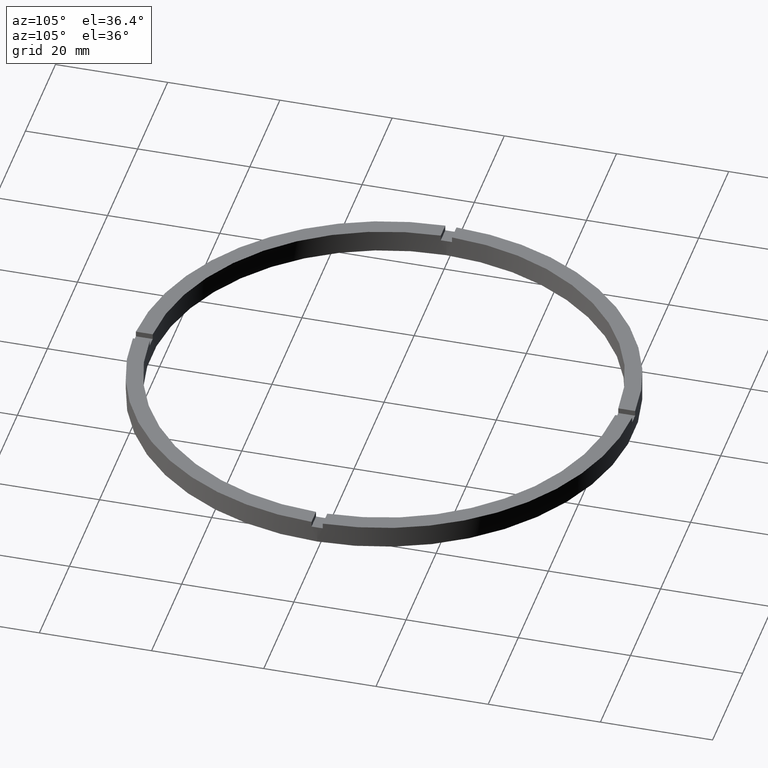
[diagram: clean part render]
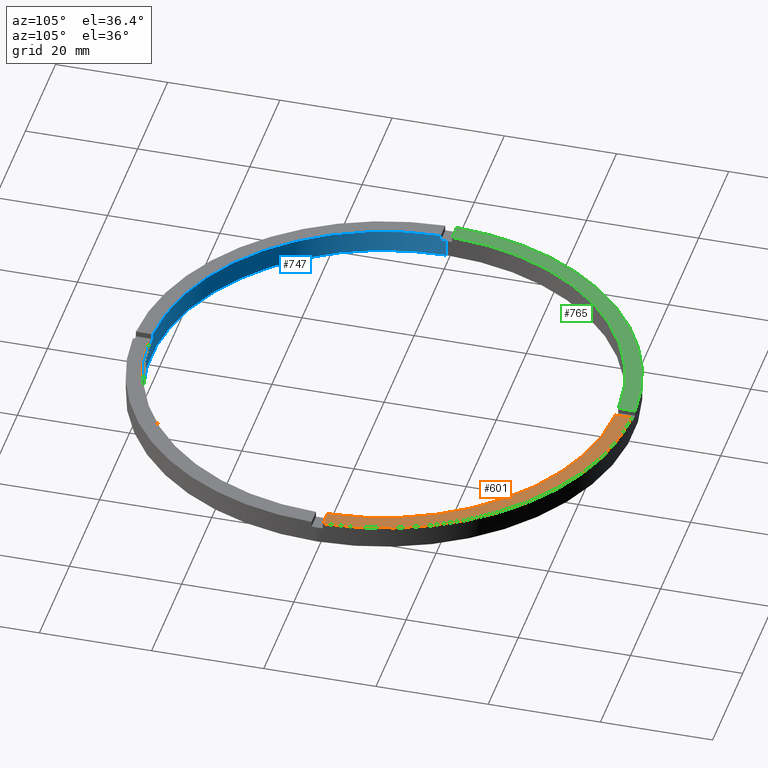
[diagram: same view with three faces highlighted in distinct colors, each labeled with its STEP entity id]
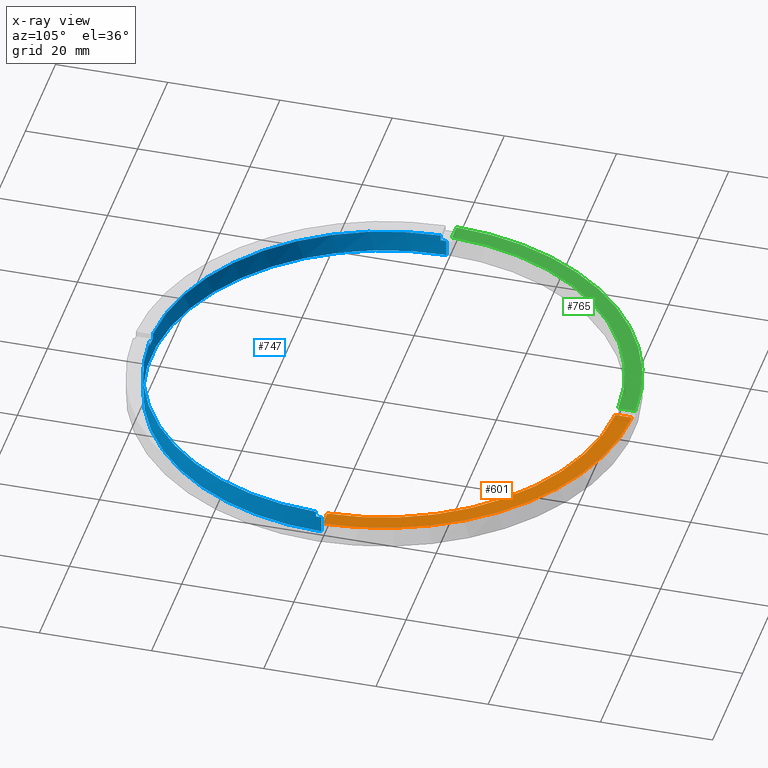
[diagram: x-ray of the same camera — body ghosted, the three highlighted faces saturated]
A machine part, auxiliary view with three faces highlighted in distinct colors.
The next image is the same camera in x-ray (body ghosted, the three faces saturated) — at least one of them is partly hidden behind the body in this view.
Their STEP definitions:

[orange] entity #601 — the highlighted planar face has unit normal (0, 0, 1).
#28 = DIRECTION ( 'NONE',  ( 0.000000000000000000, 0.000000000000000000, 1.000000000000000000 ) ) ;
#64 = CARTESIAN_POINT ( 'NONE',  ( 0.9999999999999740208, 44.48876262608345655, 4.000000000000000000 ) ) ;
#70 = AXIS2_PLACEMENT_3D ( 'NONE', #95, #28, #229 ) ;
#71 = EDGE_CURVE ( 'NONE', #94, #215, #136, .T. ) ;
#76 = CARTESIAN_POINT ( 'NONE',  ( 0.9999999999999740208, 34.50000000000000000, 4.000000000000000000 ) ) ;
#94 = VERTEX_POINT ( 'NONE', #430 ) ;
#95 = CARTESIAN_POINT ( 'NONE',  ( 0.000000000000000000, 0.000000000000000000, 4.000000000000000000 ) ) ;
#96 = AXIS2_PLACEMENT_3D ( 'NONE', #603, #305, #345 ) ;
#112 = ORIENTED_EDGE ( 'NONE', *, *, #332, .F. ) ;
#130 = ORIENTED_EDGE ( 'NONE', *, *, #182, .F. ) ;
#136 = CIRCLE ( 'NONE', #96, 41.50000000000000000 ) ;
#164 = FACE_OUTER_BOUND ( 'NONE', #343, .T. ) ;
#165 = AXIS2_PLACEMENT_3D ( 'NONE', #475, #741, #402 ) ;
#182 = EDGE_CURVE ( 'NONE', #215, #418, #377, .T. ) ;
#215 = VERTEX_POINT ( 'NONE', #392 ) ;
#223 = CARTESIAN_POINT ( 'NONE',  ( 44.48876262608346366, 0.9999999999998439026, 4.000000000000000000 ) ) ;
#229 = DIRECTION ( 'NONE',  ( 1.000000000000000000, 0.000000000000000000, 0.000000000000000000 ) ) ;
#254 = ORIENTED_EDGE ( 'NONE', *, *, #71, .F. ) ;
#295 = DIRECTION ( 'NONE',  ( -1.000000000000000000, -6.505213034913025371E-17, -0.000000000000000000 ) ) ;
#305 = DIRECTION ( 'NONE',  ( 0.000000000000000000, 0.000000000000000000, 1.000000000000000000 ) ) ;
#332 = EDGE_CURVE ( 'NONE', #465, #94, #681, .T. ) ;
#343 = EDGE_LOOP ( 'NONE', ( #130, #254, #112, #523 ) ) ;
#345 = DIRECTION ( 'NONE',  ( 1.000000000000000000, 0.000000000000000000, 0.000000000000000000 ) ) ;
#366 = VECTOR ( 'NONE', #295, 1000.000000000000000 ) ;
#377 = LINE ( 'NONE', #76, #684 ) ;
#389 = PLANE ( 'NONE',  #165 ) ;
#392 = CARTESIAN_POINT ( 'NONE',  ( 0.9999999999999740208, 41.48795005781799716, 4.000000000000000000 ) ) ;
#402 = DIRECTION ( 'NONE',  ( 1.000000000000000000, 0.000000000000000000, -0.000000000000000000 ) ) ;
#418 = VERTEX_POINT ( 'NONE', #64 ) ;
#430 = CARTESIAN_POINT ( 'NONE',  ( 41.48795005781800427, 0.9999999999998436806, 4.000000000000000000 ) ) ;
#447 = DIRECTION ( 'NONE',  ( 0.000000000000000000, 1.000000000000000000, 0.000000000000000000 ) ) ;
#465 = VERTEX_POINT ( 'NONE', #223 ) ;
#475 = CARTESIAN_POINT ( 'NONE',  ( 0.000000000000000000, 0.000000000000000000, 4.000000000000000000 ) ) ;
#523 = ORIENTED_EDGE ( 'NONE', *, *, #549, .T. ) ;
#548 = CARTESIAN_POINT ( 'NONE',  ( 34.49999999999999289, 0.9999999999998432365, 4.000000000000000000 ) ) ;
#549 = EDGE_CURVE ( 'NONE', #465, #418, #713, .T. ) ;
#601 = ADVANCED_FACE ( 'NONE', ( #164 ), #389, .T. ) ;
#603 = CARTESIAN_POINT ( 'NONE',  ( 0.000000000000000000, 0.000000000000000000, 4.000000000000000000 ) ) ;
#681 = LINE ( 'NONE', #548, #366 ) ;
#684 = VECTOR ( 'NONE', #447, 1000.000000000000000 ) ;
#713 = CIRCLE ( 'NONE', #70, 44.50000000000000711 ) ;
#741 = DIRECTION ( 'NONE',  ( 0.000000000000000000, 0.000000000000000000, 1.000000000000000000 ) ) ;

[blue] entity #747 — the highlighted cylindrical surface (partial cylindrical patch) has radius 41.5 mm, axis along (-0, -0, -1).
#6 = VERTEX_POINT ( 'NONE', #35 ) ;
#24 = ORIENTED_EDGE ( 'NONE', *, *, #649, .T. ) ;
#27 = EDGE_CURVE ( 'NONE', #663, #259, #484, .T. ) ;
#35 = CARTESIAN_POINT ( 'NONE',  ( -41.48795005781799716, -1.000000000000029088, 3.000000000000000000 ) ) ;
#46 = VERTEX_POINT ( 'NONE', #365 ) ;
#48 = CARTESIAN_POINT ( 'NONE',  ( -41.48795005781799716, -1.000000000000029088, 4.000000000000000000 ) ) ;
#50 = VERTEX_POINT ( 'NONE', #276 ) ;
#51 = CARTESIAN_POINT ( 'NONE',  ( -41.50000000000000000, 0.000000000000000000, 4.000000000000000000 ) ) ;
#55 = VERTEX_POINT ( 'NONE', #48 ) ;
#63 = CARTESIAN_POINT ( 'NONE',  ( 0.9999999999998414602, -41.48795005781800427, 4.000000000000000000 ) ) ;
#69 = CARTESIAN_POINT ( 'NONE',  ( 0.000000000000000000, 0.000000000000000000, 0.000000000000000000 ) ) ;
#73 = CARTESIAN_POINT ( 'NONE',  ( -41.48795005781799716, -1.000000000000029088, 4.000000000000000000 ) ) ;
#82 = CARTESIAN_POINT ( 'NONE',  ( 0.000000000000000000, 0.000000000000000000, 4.000000000000000000 ) ) ;
#83 = DIRECTION ( 'NONE',  ( 1.000000000000000000, 0.000000000000000000, 0.000000000000000000 ) ) ;
#84 = DIRECTION ( 'NONE',  ( -0.000000000000000000, -0.000000000000000000, -1.000000000000000000 ) ) ;
#90 = EDGE_CURVE ( 'NONE', #521, #562, #110, .T. ) ;
#91 = EDGE_CURVE ( 'NONE', #55, #6, #395, .T. ) ;
#104 = DIRECTION ( 'NONE',  ( 0.000000000000000000, 0.000000000000000000, 1.000000000000000000 ) ) ;
#109 = AXIS2_PLACEMENT_3D ( 'NONE', #69, #104, #598 ) ;
#110 = LINE ( 'NONE', #553, #138 ) ;
#116 = CIRCLE ( 'NONE', #291, 41.50000000000000000 ) ;
#118 = LINE ( 'NONE', #51, #666 ) ;
#122 = DIRECTION ( 'NONE',  ( 0.000000000000000000, 0.000000000000000000, 1.000000000000000000 ) ) ;
#132 = DIRECTION ( 'NONE',  ( -0.000000000000000000, 0.000000000000000000, 1.000000000000000000 ) ) ;
#138 = VECTOR ( 'NONE', #489, 1000.000000000000000 ) ;
#145 = CIRCLE ( 'NONE', #685, 41.50000000000000000 ) ;
#162 = DIRECTION ( 'NONE',  ( 0.000000000000000000, 0.000000000000000000, 1.000000000000000000 ) ) ;
#176 = DIRECTION ( 'NONE',  ( 1.000000000000000000, 0.000000000000000000, 0.000000000000000000 ) ) ;
#179 = AXIS2_PLACEMENT_3D ( 'NONE', #311, #755, #373 ) ;
#185 = VECTOR ( 'NONE', #162, 1000.000000000000000 ) ;
#187 = EDGE_CURVE ( 'NONE', #695, #50, #400, .T. ) ;
#203 = CARTESIAN_POINT ( 'NONE',  ( 41.48795005781799006, -1.000000000000156319, 4.000000000000000000 ) ) ;
#222 = EDGE_LOOP ( 'NONE', ( #705, #426, #524, #513, #650, #657, #363, #257, #24, #390, #255, #260 ) ) ;
#231 = CARTESIAN_POINT ( 'NONE',  ( 0.9999999999998414602, -41.48795005781800427, 4.000000000000000000 ) ) ;
#233 = AXIS2_PLACEMENT_3D ( 'NONE', #780, #132, #83 ) ;
#255 = ORIENTED_EDGE ( 'NONE', *, *, #321, .T. ) ;
#257 = ORIENTED_EDGE ( 'NONE', *, *, #538, .F. ) ;
#259 = VERTEX_POINT ( 'NONE', #203 ) ;
#260 = ORIENTED_EDGE ( 'NONE', *, *, #27, .F. ) ;
#276 = CARTESIAN_POINT ( 'NONE',  ( 0.9999999999998414602, -41.48795005781800427, 3.000000000000000000 ) ) ;
#277 = CARTESIAN_POINT ( 'NONE',  ( -41.50000000000000000, 0.000000000000000000, 0.000000000000000000 ) ) ;
#283 = DIRECTION ( 'NONE',  ( -0.000000000000000000, -0.000000000000000000, -1.000000000000000000 ) ) ;
#291 = AXIS2_PLACEMENT_3D ( 'NONE', #333, #576, #536 ) ;
#309 = EDGE_CURVE ( 'NONE', #55, #611, #647, .T. ) ;
#310 = DIRECTION ( 'NONE',  ( -0.000000000000000000, -0.000000000000000000, -1.000000000000000000 ) ) ;
#311 = CARTESIAN_POINT ( 'NONE',  ( 0.000000000000000000, 0.000000000000000000, 4.000000000000000000 ) ) ;
#313 = EDGE_CURVE ( 'NONE', #46, #6, #145, .T. ) ;
#316 = DIRECTION ( 'NONE',  ( -0.000000000000000000, -0.000000000000000000, -1.000000000000000000 ) ) ;
#321 = EDGE_CURVE ( 'NONE', #695, #259, #673, .T. ) ;
#322 = DIRECTION ( 'NONE',  ( 0.000000000000000000, 0.000000000000000000, 1.000000000000000000 ) ) ;
#326 = CARTESIAN_POINT ( 'NONE',  ( 0.000000000000000000, 0.000000000000000000, 3.000000000000000000 ) ) ;
#333 = CARTESIAN_POINT ( 'NONE',  ( 0.000000000000000000, 0.000000000000000000, 3.000000000000000000 ) ) ;
#361 = VECTOR ( 'NONE', #283, 1000.000000000000000 ) ;
#362 = EDGE_CURVE ( 'NONE', #663, #521, #116, .T. ) ;
#363 = ORIENTED_EDGE ( 'NONE', *, *, #309, .T. ) ;
#365 = CARTESIAN_POINT ( 'NONE',  ( -41.50000000000000000, 0.000000000000000000, 3.000000000000000000 ) ) ;
#368 = VERTEX_POINT ( 'NONE', #627 ) ;
#373 = DIRECTION ( 'NONE',  ( 1.000000000000000000, 0.000000000000000000, 0.000000000000000000 ) ) ;
#384 = DIRECTION ( 'NONE',  ( 1.000000000000000000, 0.000000000000000000, 0.000000000000000000 ) ) ;
#390 = ORIENTED_EDGE ( 'NONE', *, *, #187, .F. ) ;
#395 = LINE ( 'NONE', #73, #642 ) ;
#400 = LINE ( 'NONE', #63, #361 ) ;
#416 = EDGE_CURVE ( 'NONE', #46, #646, #118, .T. ) ;
#424 = LINE ( 'NONE', #746, #185 ) ;
#426 = ORIENTED_EDGE ( 'NONE', *, *, #90, .T. ) ;
#448 = FACE_OUTER_BOUND ( 'NONE', #222, .T. ) ;
#451 = DIRECTION ( 'NONE',  ( 0.000000000000000000, 0.000000000000000000, 1.000000000000000000 ) ) ;
#484 = LINE ( 'NONE', #582, #486 ) ;
#486 = VECTOR ( 'NONE', #122, 1000.000000000000000 ) ;
#489 = DIRECTION ( 'NONE',  ( -0.000000000000000000, -0.000000000000000000, -1.000000000000000000 ) ) ;
#513 = ORIENTED_EDGE ( 'NONE', *, *, #416, .F. ) ;
#521 = VERTEX_POINT ( 'NONE', #661 ) ;
#524 = ORIENTED_EDGE ( 'NONE', *, *, #550, .F. ) ;
#536 = DIRECTION ( 'NONE',  ( 1.000000000000000000, 0.000000000000000000, 0.000000000000000000 ) ) ;
#538 = EDGE_CURVE ( 'NONE', #368, #611, #424, .T. ) ;
#550 = EDGE_CURVE ( 'NONE', #646, #562, #717, .T. ) ;
#553 = CARTESIAN_POINT ( 'NONE',  ( 41.50000000000000000, 5.082284216461515748E-15, 4.000000000000000000 ) ) ;
#562 = VERTEX_POINT ( 'NONE', #592 ) ;
#576 = DIRECTION ( 'NONE',  ( 0.000000000000000000, 0.000000000000000000, 1.000000000000000000 ) ) ;
#582 = CARTESIAN_POINT ( 'NONE',  ( 41.48795005781799006, -1.000000000000156319, 4.000000000000000000 ) ) ;
#592 = CARTESIAN_POINT ( 'NONE',  ( 41.50000000000000000, 5.082284216461515748E-15, 0.000000000000000000 ) ) ;
#593 = AXIS2_PLACEMENT_3D ( 'NONE', #622, #316, #710 ) ;
#598 = DIRECTION ( 'NONE',  ( 1.000000000000000000, 0.000000000000000000, 0.000000000000000000 ) ) ;
#611 = VERTEX_POINT ( 'NONE', #634 ) ;
#613 = CARTESIAN_POINT ( 'NONE',  ( 41.48795005781799006, -1.000000000000156319, 3.000000000000000000 ) ) ;
#622 = CARTESIAN_POINT ( 'NONE',  ( 0.000000000000000000, 0.000000000000000000, 4.000000000000000000 ) ) ;
#627 = CARTESIAN_POINT ( 'NONE',  ( -1.000000000000158540, -41.48795005781799006, 3.000000000000000000 ) ) ;
#634 = CARTESIAN_POINT ( 'NONE',  ( -1.000000000000158540, -41.48795005781799006, 4.000000000000000000 ) ) ;
#642 = VECTOR ( 'NONE', #310, 1000.000000000000000 ) ;
#646 = VERTEX_POINT ( 'NONE', #277 ) ;
#647 = CIRCLE ( 'NONE', #179, 41.50000000000000000 ) ;
#649 = EDGE_CURVE ( 'NONE', #368, #50, #718, .T. ) ;
#650 = ORIENTED_EDGE ( 'NONE', *, *, #313, .T. ) ;
#657 = ORIENTED_EDGE ( 'NONE', *, *, #91, .F. ) ;
#661 = CARTESIAN_POINT ( 'NONE',  ( 41.50000000000000000, 5.082284216461515748E-15, 3.000000000000000000 ) ) ;
#663 = VERTEX_POINT ( 'NONE', #613 ) ;
#666 = VECTOR ( 'NONE', #84, 1000.000000000000000 ) ;
#673 = CIRCLE ( 'NONE', #744, 41.50000000000000000 ) ;
#685 = AXIS2_PLACEMENT_3D ( 'NONE', #326, #322, #384 ) ;
#693 = CYLINDRICAL_SURFACE ( 'NONE', #593, 41.50000000000000000 ) ;
#695 = VERTEX_POINT ( 'NONE', #231 ) ;
#705 = ORIENTED_EDGE ( 'NONE', *, *, #362, .T. ) ;
#710 = DIRECTION ( 'NONE',  ( -1.000000000000000000, 0.000000000000000000, 0.000000000000000000 ) ) ;
#717 = CIRCLE ( 'NONE', #109, 41.50000000000000000 ) ;
#718 = CIRCLE ( 'NONE', #233, 41.50000000000000000 ) ;
#744 = AXIS2_PLACEMENT_3D ( 'NONE', #82, #451, #176 ) ;
#746 = CARTESIAN_POINT ( 'NONE',  ( -1.000000000000158540, -41.48795005781799006, 4.000000000000000000 ) ) ;
#747 = ADVANCED_FACE ( 'NONE', ( #448 ), #693, .F. ) ;
#755 = DIRECTION ( 'NONE',  ( 0.000000000000000000, 0.000000000000000000, 1.000000000000000000 ) ) ;
#780 = CARTESIAN_POINT ( 'NONE',  ( 0.000000000000000000, 0.000000000000000000, 3.000000000000000000 ) ) ;

[green] entity #765 — the highlighted planar face has unit normal (0, 0, 1).
#4 = VERTEX_POINT ( 'NONE', #213 ) ;
#19 = ORIENTED_EDGE ( 'NONE', *, *, #730, .F. ) ;
#21 = DIRECTION ( 'NONE',  ( 0.000000000000000000, 0.000000000000000000, 1.000000000000000000 ) ) ;
#43 = VERTEX_POINT ( 'NONE', #462 ) ;
#142 = LINE ( 'NONE', #217, #401 ) ;
#173 = ORIENTED_EDGE ( 'NONE', *, *, #570, .F. ) ;
#174 = CIRCLE ( 'NONE', #629, 44.50000000000000711 ) ;
#183 = CIRCLE ( 'NONE', #749, 41.50000000000000000 ) ;
#196 = VERTEX_POINT ( 'NONE', #329 ) ;
#213 = CARTESIAN_POINT ( 'NONE',  ( -44.48876262608345655, 0.9999999999999703570, 4.000000000000000000 ) ) ;
#217 = CARTESIAN_POINT ( 'NONE',  ( -1.000000000000025979, 34.50000000000000000, 4.000000000000000000 ) ) ;
#224 = CARTESIAN_POINT ( 'NONE',  ( -1.000000000000025979, 44.48876262608345655, 4.000000000000000000 ) ) ;
#261 = ORIENTED_EDGE ( 'NONE', *, *, #440, .T. ) ;
#262 = EDGE_CURVE ( 'NONE', #284, #196, #142, .T. ) ;
#284 = VERTEX_POINT ( 'NONE', #224 ) ;
#320 = CARTESIAN_POINT ( 'NONE',  ( 0.000000000000000000, 0.000000000000000000, 4.000000000000000000 ) ) ;
#329 = CARTESIAN_POINT ( 'NONE',  ( -1.000000000000025979, 41.48795005781799716, 4.000000000000000000 ) ) ;
#372 = DIRECTION ( 'NONE',  ( 0.000000000000000000, 0.000000000000000000, 1.000000000000000000 ) ) ;
#378 = CARTESIAN_POINT ( 'NONE',  ( -34.50000000000019185, 0.9999999999999722444, 4.000000000000000000 ) ) ;
#401 = VECTOR ( 'NONE', #459, 1000.000000000000000 ) ;
#432 = FACE_OUTER_BOUND ( 'NONE', #532, .T. ) ;
#440 = EDGE_CURVE ( 'NONE', #284, #4, #174, .T. ) ;
#459 = DIRECTION ( 'NONE',  ( -0.000000000000000000, -1.000000000000000000, -0.000000000000000000 ) ) ;
#462 = CARTESIAN_POINT ( 'NONE',  ( -41.48795005781799716, 0.9999999999999709122, 4.000000000000000000 ) ) ;
#467 = DIRECTION ( 'NONE',  ( 1.000000000000000000, 0.000000000000000000, 0.000000000000000000 ) ) ;
#468 = PLANE ( 'NONE',  #561 ) ;
#469 = DIRECTION ( 'NONE',  ( -1.000000000000000000, -1.951563910473907735E-16, 0.000000000000000000 ) ) ;
#478 = CARTESIAN_POINT ( 'NONE',  ( 0.000000000000000000, 0.000000000000000000, 4.000000000000000000 ) ) ;
#527 = CARTESIAN_POINT ( 'NONE',  ( 0.000000000000000000, 0.000000000000000000, 4.000000000000000000 ) ) ;
#532 = EDGE_LOOP ( 'NONE', ( #665, #261, #173, #19 ) ) ;
#561 = AXIS2_PLACEMENT_3D ( 'NONE', #527, #719, #777 ) ;
#570 = EDGE_CURVE ( 'NONE', #43, #4, #706, .T. ) ;
#595 = DIRECTION ( 'NONE',  ( 1.000000000000000000, 0.000000000000000000, 0.000000000000000000 ) ) ;
#629 = AXIS2_PLACEMENT_3D ( 'NONE', #320, #372, #467 ) ;
#665 = ORIENTED_EDGE ( 'NONE', *, *, #262, .F. ) ;
#700 = VECTOR ( 'NONE', #469, 1000.000000000000000 ) ;
#706 = LINE ( 'NONE', #378, #700 ) ;
#719 = DIRECTION ( 'NONE',  ( 0.000000000000000000, 0.000000000000000000, 1.000000000000000000 ) ) ;
#730 = EDGE_CURVE ( 'NONE', #196, #43, #183, .T. ) ;
#749 = AXIS2_PLACEMENT_3D ( 'NONE', #478, #21, #595 ) ;
#765 = ADVANCED_FACE ( 'NONE', ( #432 ), #468, .T. ) ;
#777 = DIRECTION ( 'NONE',  ( 1.000000000000000000, 0.000000000000000000, -0.000000000000000000 ) ) ;